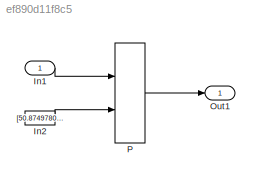
MODEL slx_ef890d11f8c5
KIND model
CONFIG AbsTol = auto
CONFIG EnableMultiTasking = off
CONFIG FixedStep = auto
CONFIG MaxStep = auto
CONFIG MinStep = auto
CONFIG RelTol = 1e-3
CONFIG SampleTimeConstraint = Unconstrained
CONFIG Solver = FixedStepDiscrete
CONFIG SolverName = FixedStepDiscrete
CONFIG StartTime = 0.0
CONFIG StopTime = 10.0
BLOCK [Inport] In1
  IconDisplay = Port number
  OutDataTypeStr = uint8
  PortDimensions = 3
BLOCK [Constant] In2
  Value = [50.8749780049608 52.3749780049608 53.8749780049608 55.3749780049608 56.8749780049608 58.3749780049608 59.8749780049608 61.3749780049608 62.8749780049608 64.3749780049608 65.8749780049608 67.3749780049608 68.8749780049608 70.3749780049608 71.8749780049608 73.3749780049608 74.8749780049608 76.3749780049608 77.8749780049608 79.3749780049608 80.8749780049608 82.3749780049608 83.8749780049608 85.37497...<+349ch>
BLOCK [Outport] Out1
  IconDisplay = Port number
BLOCK [PreLookup] P
  BreakpointDataTypeStr = single
  BreakpointsData = [10:10:110]
  BreakpointsDataSource = Input port
  FractionDataTypeStr = single
  InputPortMap = u0,p1
  OutputSelection = Index only
  Ports = [2, 1]
  UseLastBreakpoint = on
LINE In1:1 -> P:1
LINE In2:1 -> P:2
LINE P:1 -> Out1:1
